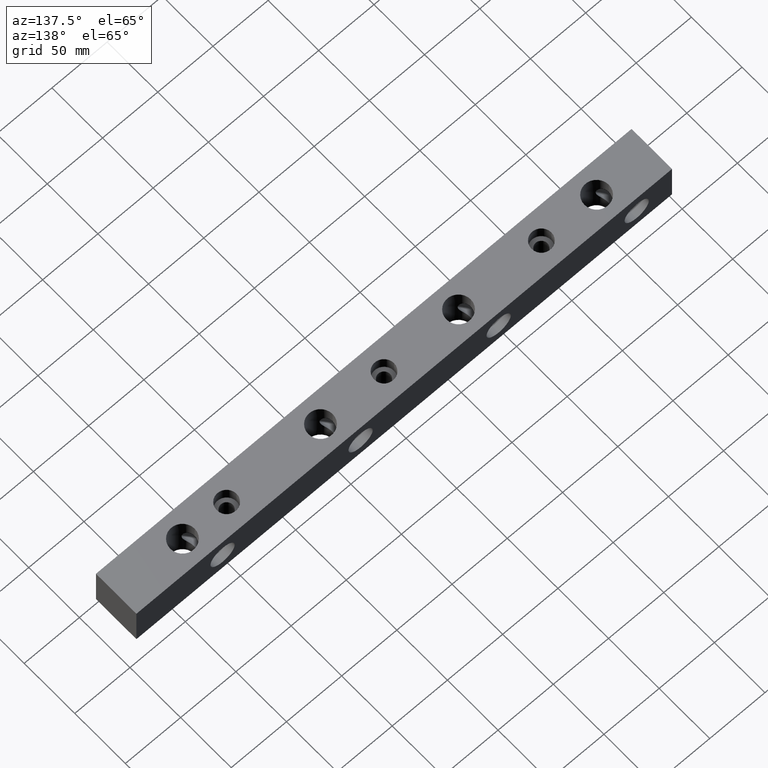
[diagram: clean part render]
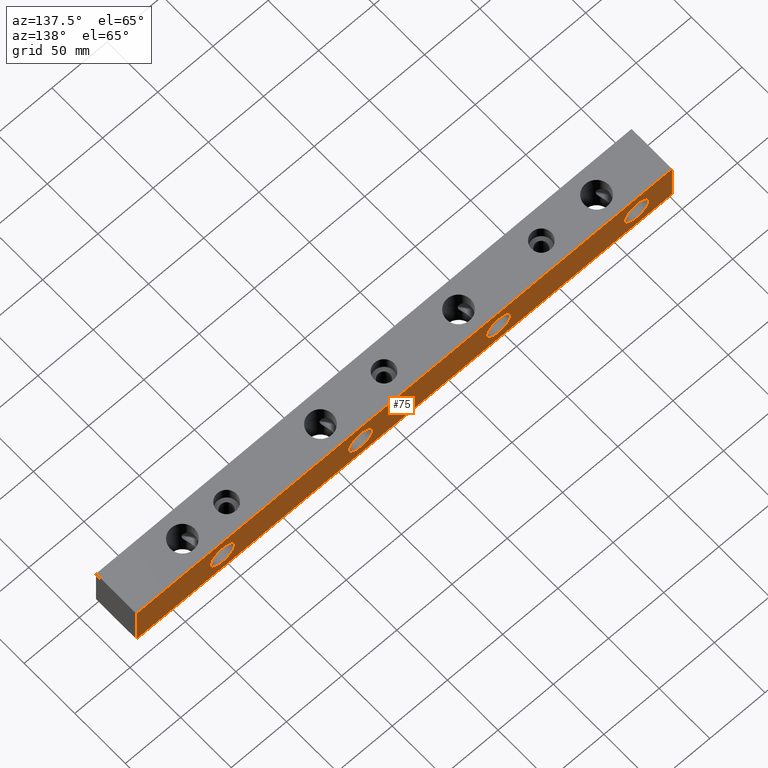
[diagram: same view with one face highlighted and labeled with its STEP entity id]
A machine part, auxiliary view. The second image highlights one B-rep face of the part: STEP entity #75.
In plain terms, the highlighted planar face has unit normal (0, -1, 0).
Its self-contained STEP definition (entity closure, byte-faithful):
#15 = VERTEX_POINT ( 'NONE', #232 ) ;
#21 = VERTEX_POINT ( 'NONE', #1545 ) ;
#40 = FACE_BOUND ( 'NONE', #569, .T. ) ;
#69 = AXIS2_PLACEMENT_3D ( 'NONE', #378, #250, #664 ) ;
#75 = ADVANCED_FACE ( 'NONE', ( #1115, #544, #40, #506, #1555 ), #1325, .F. ) ;
#76 = CIRCLE ( 'NONE', #97, 10.99999999999997500 ) ;
#97 = AXIS2_PLACEMENT_3D ( 'NONE', #528, #918, #1320 ) ;
#107 = ORIENTED_EDGE ( 'NONE', *, *, #705, .T. ) ;
#124 = VERTEX_POINT ( 'NONE', #1567 ) ;
#171 = EDGE_CURVE ( 'NONE', #1377, #1488, #1049, .T. ) ;
#173 = VERTEX_POINT ( 'NONE', #936 ) ;
#186 = LINE ( 'NONE', #1397, #527 ) ;
#194 = EDGE_CURVE ( 'NONE', #1422, #21, #674, .T. ) ;
#195 = LINE ( 'NONE', #690, #463 ) ;
#232 = CARTESIAN_POINT ( 'NONE',  ( 407.0000000000000000, 40.00000000000000000, 30.99999999999997500 ) ) ;
#250 = DIRECTION ( 'NONE',  ( 0.0000000000000000000, -1.000000000000000000, 0.0000000000000000000 ) ) ;
#260 = ORIENTED_EDGE ( 'NONE', *, *, #1697, .T. ) ;
#279 = DIRECTION ( 'NONE',  ( 0.0000000000000000000, 0.0000000000000000000, -1.000000000000000000 ) ) ;
#281 = DIRECTION ( 'NONE',  ( 0.0000000000000000000, -1.000000000000000000, 0.0000000000000000000 ) ) ;
#282 = EDGE_LOOP ( 'NONE', ( #1251, #1597 ) ) ;
#286 = ORIENTED_EDGE ( 'NONE', *, *, #445, .T. ) ;
#304 = DIRECTION ( 'NONE',  ( -0.0000000000000000000, -0.0000000000000000000, -1.000000000000000000 ) ) ;
#311 = CIRCLE ( 'NONE', #584, 10.99999999999997500 ) ;
#346 = VERTEX_POINT ( 'NONE', #1416 ) ;
#378 = CARTESIAN_POINT ( 'NONE',  ( 0.0000000000000000000, 40.00000000000000000, 40.00000000000000000 ) ) ;
#385 = CARTESIAN_POINT ( 'NONE',  ( 485.0000000000000000, 40.00000000000000000, 0.0000000000000000000 ) ) ;
#386 = DIRECTION ( 'NONE',  ( 0.0000000000000000000, -1.000000000000000000, 0.0000000000000000000 ) ) ;
#403 = EDGE_LOOP ( 'NONE', ( #260, #706 ) ) ;
#417 = DIRECTION ( 'NONE',  ( 0.0000000000000000000, -1.000000000000000000, 0.0000000000000000000 ) ) ;
#420 = DIRECTION ( 'NONE',  ( -0.0000000000000000000, -0.0000000000000000000, -1.000000000000000000 ) ) ;
#437 = DIRECTION ( 'NONE',  ( 0.0000000000000000000, 0.0000000000000000000, -1.000000000000000000 ) ) ;
#445 = EDGE_CURVE ( 'NONE', #346, #870, #311, .T. ) ;
#455 = DIRECTION ( 'NONE',  ( 0.0000000000000000000, -1.000000000000000000, 0.0000000000000000000 ) ) ;
#463 = VECTOR ( 'NONE', #420, 1000.000000000000000 ) ;
#485 = DIRECTION ( 'NONE',  ( 0.0000000000000000000, 0.0000000000000000000, -1.000000000000000000 ) ) ;
#487 = CIRCLE ( 'NONE', #1490, 11.00000000000000700 ) ;
#506 = FACE_BOUND ( 'NONE', #403, .T. ) ;
#509 = ORIENTED_EDGE ( 'NONE', *, *, #648, .T. ) ;
#527 = VECTOR ( 'NONE', #1284, 1000.000000000000000 ) ;
#528 = CARTESIAN_POINT ( 'NONE',  ( 282.0000000000000000, 40.00000000000000000, 20.00000000000000000 ) ) ;
#529 = DIRECTION ( 'NONE',  ( -1.000000000000000000, -0.0000000000000000000, -0.0000000000000000000 ) ) ;
#544 = FACE_BOUND ( 'NONE', #837, .T. ) ;
#566 = ORIENTED_EDGE ( 'NONE', *, *, #1657, .T. ) ;
#569 = EDGE_LOOP ( 'NONE', ( #509, #1644 ) ) ;
#579 = CARTESIAN_POINT ( 'NONE',  ( 485.0000000000000000, 40.00000000000000000, 40.00000000000000000 ) ) ;
#584 = AXIS2_PLACEMENT_3D ( 'NONE', #1202, #386, #799 ) ;
#608 = CARTESIAN_POINT ( 'NONE',  ( 157.0000000000000000, 40.00000000000000000, 20.00000000000000000 ) ) ;
#648 = EDGE_CURVE ( 'NONE', #124, #15, #917, .T. ) ;
#664 = DIRECTION ( 'NONE',  ( 0.0000000000000000000, -0.0000000000000000000, -1.000000000000000000 ) ) ;
#674 = CIRCLE ( 'NONE', #1057, 11.00000000000000700 ) ;
#676 = CARTESIAN_POINT ( 'NONE',  ( 0.0000000000000000000, 40.00000000000000000, 40.00000000000000000 ) ) ;
#683 = ORIENTED_EDGE ( 'NONE', *, *, #1477, .T. ) ;
#690 = CARTESIAN_POINT ( 'NONE',  ( 0.0000000000000000000, 40.00000000000000000, 40.00000000000000000 ) ) ;
#691 = EDGE_LOOP ( 'NONE', ( #566, #1003, #1079, #683 ) ) ;
#705 = EDGE_CURVE ( 'NONE', #870, #346, #76, .T. ) ;
#706 = ORIENTED_EDGE ( 'NONE', *, *, #194, .T. ) ;
#726 = VERTEX_POINT ( 'NONE', #385 ) ;
#734 = CARTESIAN_POINT ( 'NONE',  ( 157.0000000000000000, 40.00000000000000000, 31.00000000000000700 ) ) ;
#741 = CIRCLE ( 'NONE', #976, 10.99999999999997500 ) ;
#799 = DIRECTION ( 'NONE',  ( 0.0000000000000000000, 0.0000000000000000000, -1.000000000000000000 ) ) ;
#820 = CARTESIAN_POINT ( 'NONE',  ( 32.00000000000000000, 40.00000000000000000, 31.00000000000000700 ) ) ;
#828 = EDGE_CURVE ( 'NONE', #15, #124, #741, .T. ) ;
#829 = VECTOR ( 'NONE', #529, 1000.000000000000000 ) ;
#837 = EDGE_LOOP ( 'NONE', ( #107, #286 ) ) ;
#838 = LINE ( 'NONE', #1083, #1444 ) ;
#870 = VERTEX_POINT ( 'NONE', #1387 ) ;
#890 = DIRECTION ( 'NONE',  ( 0.0000000000000000000, -1.000000000000000000, 0.0000000000000000000 ) ) ;
#897 = CARTESIAN_POINT ( 'NONE',  ( 157.0000000000000000, 40.00000000000000000, 20.00000000000000000 ) ) ;
#916 = DIRECTION ( 'NONE',  ( 0.0000000000000000000, 0.0000000000000000000, -1.000000000000000000 ) ) ;
#917 = CIRCLE ( 'NONE', #1530, 10.99999999999997500 ) ;
#918 = DIRECTION ( 'NONE',  ( 0.0000000000000000000, -1.000000000000000000, 0.0000000000000000000 ) ) ;
#936 = CARTESIAN_POINT ( 'NONE',  ( 0.0000000000000000000, 40.00000000000000000, 0.0000000000000000000 ) ) ;
#938 = EDGE_CURVE ( 'NONE', #1293, #1257, #487, .T. ) ;
#976 = AXIS2_PLACEMENT_3D ( 'NONE', #1605, #1223, #437 ) ;
#1003 = ORIENTED_EDGE ( 'NONE', *, *, #1025, .F. ) ;
#1025 = EDGE_CURVE ( 'NONE', #1488, #173, #195, .T. ) ;
#1033 = AXIS2_PLACEMENT_3D ( 'NONE', #897, #1154, #1542 ) ;
#1049 = LINE ( 'NONE', #676, #829 ) ;
#1057 = AXIS2_PLACEMENT_3D ( 'NONE', #1084, #281, #1232 ) ;
#1079 = ORIENTED_EDGE ( 'NONE', *, *, #171, .F. ) ;
#1083 = CARTESIAN_POINT ( 'NONE',  ( 485.0000000000000000, 40.00000000000000000, 40.00000000000000000 ) ) ;
#1084 = CARTESIAN_POINT ( 'NONE',  ( 32.00000000000000000, 40.00000000000000000, 20.00000000000000000 ) ) ;
#1115 = FACE_BOUND ( 'NONE', #282, .T. ) ;
#1139 = AXIS2_PLACEMENT_3D ( 'NONE', #1468, #417, #279 ) ;
#1154 = DIRECTION ( 'NONE',  ( 0.0000000000000000000, -1.000000000000000000, 0.0000000000000000000 ) ) ;
#1179 = CARTESIAN_POINT ( 'NONE',  ( 157.0000000000000000, 40.00000000000000000, 8.999999999999994700 ) ) ;
#1202 = CARTESIAN_POINT ( 'NONE',  ( 282.0000000000000000, 40.00000000000000000, 20.00000000000000000 ) ) ;
#1223 = DIRECTION ( 'NONE',  ( 0.0000000000000000000, -1.000000000000000000, 0.0000000000000000000 ) ) ;
#1226 = EDGE_CURVE ( 'NONE', #1257, #1293, #1539, .T. ) ;
#1232 = DIRECTION ( 'NONE',  ( 0.0000000000000000000, 0.0000000000000000000, -1.000000000000000000 ) ) ;
#1251 = ORIENTED_EDGE ( 'NONE', *, *, #1226, .T. ) ;
#1257 = VERTEX_POINT ( 'NONE', #1179 ) ;
#1284 = DIRECTION ( 'NONE',  ( -1.000000000000000000, -0.0000000000000000000, -0.0000000000000000000 ) ) ;
#1293 = VERTEX_POINT ( 'NONE', #734 ) ;
#1297 = CIRCLE ( 'NONE', #1139, 11.00000000000000700 ) ;
#1320 = DIRECTION ( 'NONE',  ( 0.0000000000000000000, 0.0000000000000000000, -1.000000000000000000 ) ) ;
#1325 = PLANE ( 'NONE',  #69 ) ;
#1374 = CARTESIAN_POINT ( 'NONE',  ( 407.0000000000000000, 40.00000000000000000, 20.00000000000000000 ) ) ;
#1377 = VERTEX_POINT ( 'NONE', #579 ) ;
#1387 = CARTESIAN_POINT ( 'NONE',  ( 282.0000000000000000, 40.00000000000000000, 9.000000000000024900 ) ) ;
#1397 = CARTESIAN_POINT ( 'NONE',  ( 0.0000000000000000000, 40.00000000000000000, 0.0000000000000000000 ) ) ;
#1416 = CARTESIAN_POINT ( 'NONE',  ( 282.0000000000000000, 40.00000000000000000, 30.99999999999997500 ) ) ;
#1422 = VERTEX_POINT ( 'NONE', #820 ) ;
#1444 = VECTOR ( 'NONE', #304, 1000.000000000000000 ) ;
#1468 = CARTESIAN_POINT ( 'NONE',  ( 32.00000000000000000, 40.00000000000000000, 20.00000000000000000 ) ) ;
#1477 = EDGE_CURVE ( 'NONE', #1377, #726, #838, .T. ) ;
#1488 = VERTEX_POINT ( 'NONE', #1652 ) ;
#1490 = AXIS2_PLACEMENT_3D ( 'NONE', #608, #890, #485 ) ;
#1530 = AXIS2_PLACEMENT_3D ( 'NONE', #1374, #455, #916 ) ;
#1539 = CIRCLE ( 'NONE', #1033, 11.00000000000000700 ) ;
#1542 = DIRECTION ( 'NONE',  ( 0.0000000000000000000, 0.0000000000000000000, -1.000000000000000000 ) ) ;
#1545 = CARTESIAN_POINT ( 'NONE',  ( 32.00000000000000000, 40.00000000000000000, 8.999999999999994700 ) ) ;
#1555 = FACE_OUTER_BOUND ( 'NONE', #691, .T. ) ;
#1567 = CARTESIAN_POINT ( 'NONE',  ( 407.0000000000000000, 40.00000000000000000, 9.000000000000024900 ) ) ;
#1597 = ORIENTED_EDGE ( 'NONE', *, *, #938, .T. ) ;
#1605 = CARTESIAN_POINT ( 'NONE',  ( 407.0000000000000000, 40.00000000000000000, 20.00000000000000000 ) ) ;
#1644 = ORIENTED_EDGE ( 'NONE', *, *, #828, .T. ) ;
#1652 = CARTESIAN_POINT ( 'NONE',  ( 0.0000000000000000000, 40.00000000000000000, 40.00000000000000000 ) ) ;
#1657 = EDGE_CURVE ( 'NONE', #726, #173, #186, .T. ) ;
#1697 = EDGE_CURVE ( 'NONE', #21, #1422, #1297, .T. ) ;